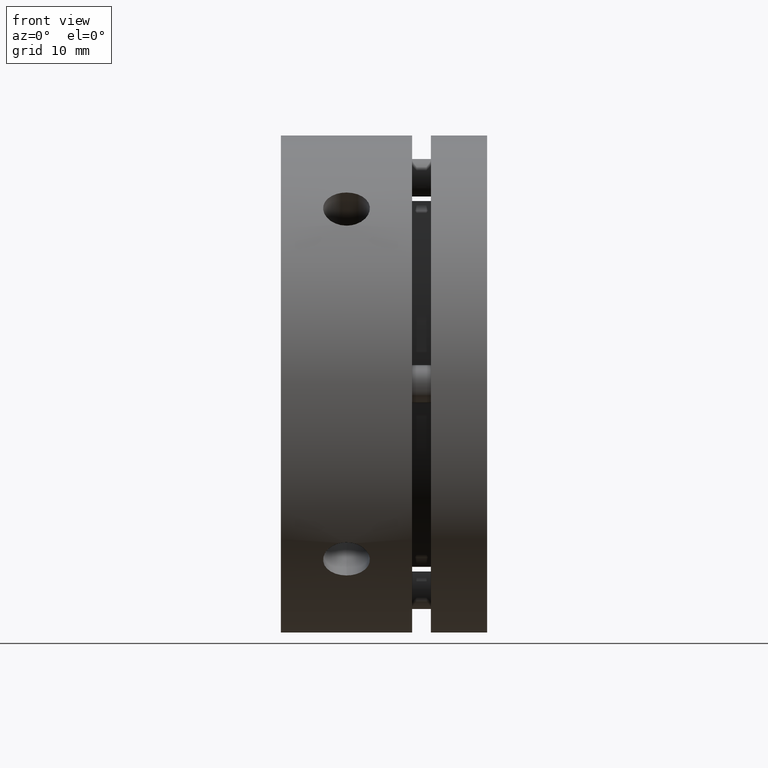
[diagram: clean part render]
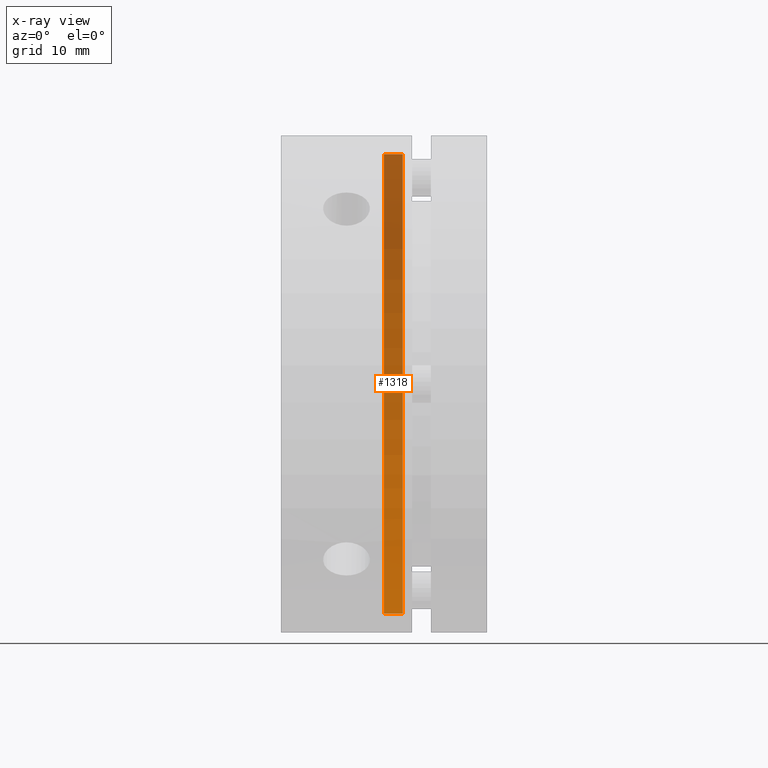
[diagram: x-ray — body ghosted, one internal face saturated and labeled with its STEP entity id]
A machine part, front view, then the same camera in x-ray: the body is ghosted and one INTERNAL B-rep face — a face not visible from any outside direction — is saturated and labeled: STEP entity #1318.
In plain terms, the highlighted cylindrical surface (partial cylindrical patch) has radius 24.5 mm, axis along (-1, 0, 0).
Its self-contained STEP definition (entity closure, byte-faithful):
#541 = DIRECTION ( 'NONE',  ( -1.000000000000000000, 0.0000000000000000000, 0.0000000000000000000 ) ) ;
#545 = DIRECTION ( 'NONE',  ( -1.000000000000000000, 0.0000000000000000000, 0.0000000000000000000 ) ) ;
#546 = CARTESIAN_POINT ( 'NONE',  ( 12.00000000000001200, 0.0000000000000000000, 24.50000000000000700 ) ) ;
#547 = CARTESIAN_POINT ( 'NONE',  ( 12.00000000000001200, 3.000384657911016300E-015, -24.50000000000000700 ) ) ;
#793 = DIRECTION ( 'NONE',  ( 0.0000000000000000000, 0.0000000000000000000, 1.000000000000000000 ) ) ;
#795 = DIRECTION ( 'NONE',  ( -1.000000000000000000, 0.0000000000000000000, 0.0000000000000000000 ) ) ;
#797 = CARTESIAN_POINT ( 'NONE',  ( 12.00000000000001200, 0.0000000000000000000, 0.0000000000000000000 ) ) ;
#928 = EDGE_CURVE ( 'NONE', #2831, #2926, #1197, .T. ) ;
#930 = EDGE_CURVE ( 'NONE', #2924, #2935, #1205, .T. ) ;
#1197 = LINE ( 'NONE', #547, #1204 ) ;
#1204 = VECTOR ( 'NONE', #541, 1000.000000000000000 ) ;
#1205 = LINE ( 'NONE', #546, #1207 ) ;
#1207 = VECTOR ( 'NONE', #545, 1000.000000000000000 ) ;
#1318 = ADVANCED_FACE ( 'NONE', ( #1583 ), #1592, .F. ) ;
#1356 = EDGE_LOOP ( 'NONE', ( #3167, #3168, #3169, #3170 ) ) ;
#1583 = FACE_OUTER_BOUND ( 'NONE', #1356, .T. ) ;
#1592 = CYLINDRICAL_SURFACE ( 'NONE', #1765, 24.50000000000000700 ) ;
#1765 = AXIS2_PLACEMENT_3D ( 'NONE', #797, #795, #793 ) ;
#1846 = AXIS2_PLACEMENT_3D ( 'NONE', #2388, #2389, #2390 ) ;
#1847 = AXIS2_PLACEMENT_3D ( 'NONE', #2391, #2392, #2393 ) ;
#2003 = CARTESIAN_POINT ( 'NONE',  ( 13.00000000000000900, 3.000384657911016300E-015, -24.50000000000000700 ) ) ;
#2092 = CARTESIAN_POINT ( 'NONE',  ( 13.00000000000000900, 0.0000000000000000000, 24.50000000000000700 ) ) ;
#2094 = CARTESIAN_POINT ( 'NONE',  ( 11.00000000000001800, 3.000384657911016300E-015, -24.50000000000000700 ) ) ;
#2103 = CARTESIAN_POINT ( 'NONE',  ( 11.00000000000001800, 0.0000000000000000000, 24.50000000000000700 ) ) ;
#2388 = CARTESIAN_POINT ( 'NONE',  ( 13.00000000000000900, 0.0000000000000000000, 0.0000000000000000000 ) ) ;
#2389 = DIRECTION ( 'NONE',  ( 1.000000000000000000, -0.0000000000000000000, -0.0000000000000000000 ) ) ;
#2390 = DIRECTION ( 'NONE',  ( 0.0000000000000000000, 0.0000000000000000000, 1.000000000000000000 ) ) ;
#2391 = CARTESIAN_POINT ( 'NONE',  ( 11.00000000000001800, 0.0000000000000000000, 0.0000000000000000000 ) ) ;
#2392 = DIRECTION ( 'NONE',  ( -1.000000000000000000, 0.0000000000000000000, 0.0000000000000000000 ) ) ;
#2393 = DIRECTION ( 'NONE',  ( 0.0000000000000000000, 0.0000000000000000000, 1.000000000000000000 ) ) ;
#2602 = CIRCLE ( 'NONE', #1846, 24.50000000000000700 ) ;
#2603 = CIRCLE ( 'NONE', #1847, 24.50000000000000700 ) ;
#2831 = VERTEX_POINT ( 'NONE', #2003 ) ;
#2924 = VERTEX_POINT ( 'NONE', #2092 ) ;
#2926 = VERTEX_POINT ( 'NONE', #2094 ) ;
#2935 = VERTEX_POINT ( 'NONE', #2103 ) ;
#3167 = ORIENTED_EDGE ( 'NONE', *, *, #928, .F. ) ;
#3168 = ORIENTED_EDGE ( 'NONE', *, *, #3504, .T. ) ;
#3169 = ORIENTED_EDGE ( 'NONE', *, *, #930, .T. ) ;
#3170 = ORIENTED_EDGE ( 'NONE', *, *, #3505, .T. ) ;
#3504 = EDGE_CURVE ( 'NONE', #2831, #2924, #2602, .T. ) ;
#3505 = EDGE_CURVE ( 'NONE', #2935, #2926, #2603, .T. ) ;